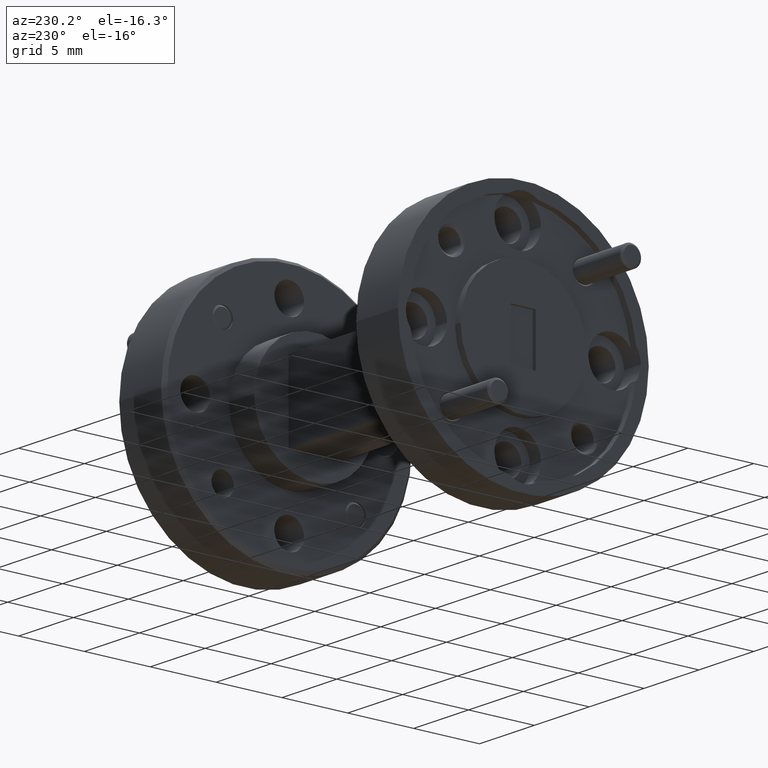
[diagram: clean part render]
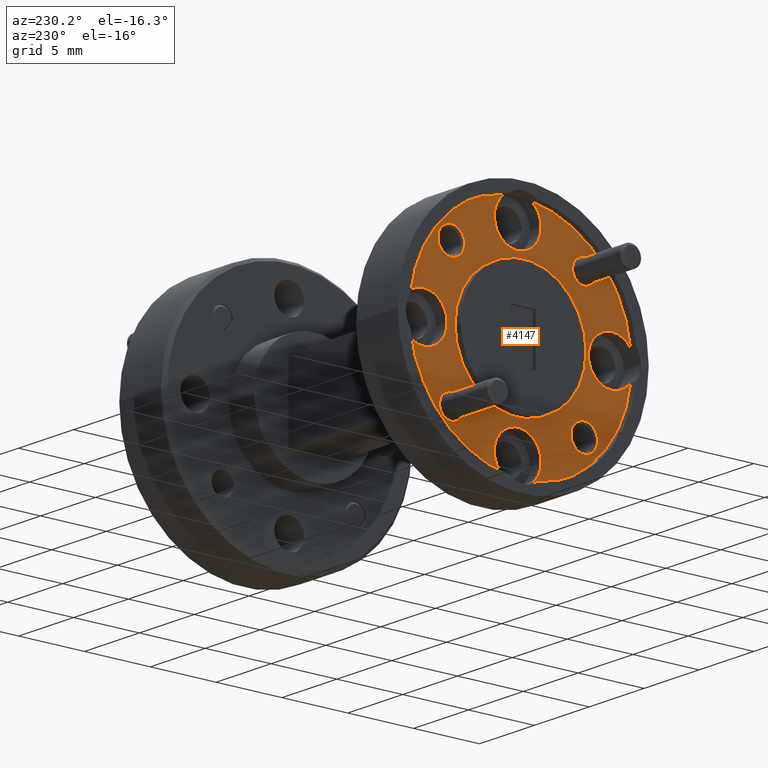
[diagram: same view with one face highlighted and labeled with its STEP entity id]
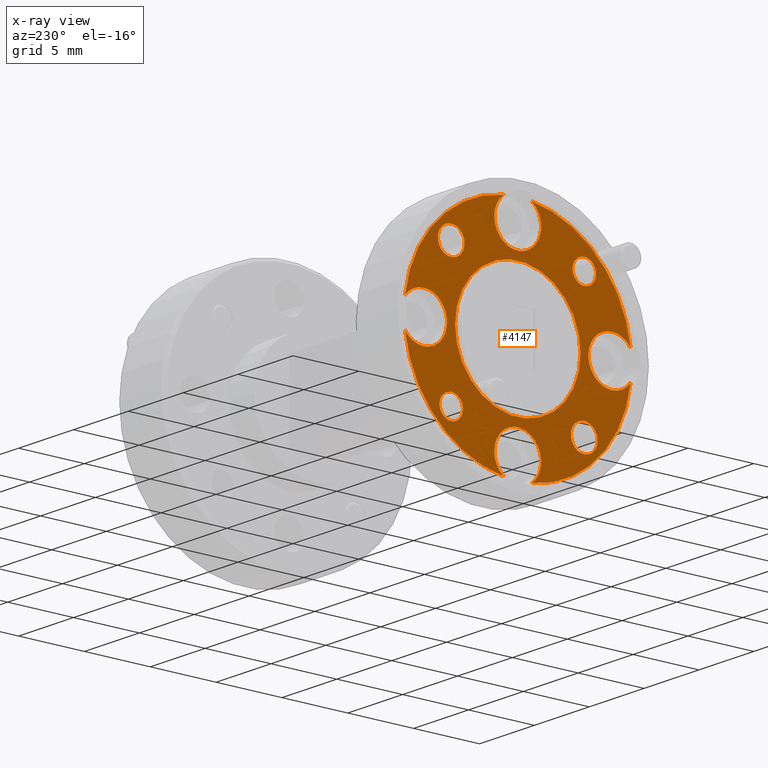
[diagram: x-ray of the same camera — body ghosted, the highlighted face saturated]
A machine part, auxiliary view. The second image highlights one B-rep face of the part: STEP entity #4147.
The next image is the same camera in x-ray: the body ghosted, the highlighted face saturated — about 0% of this face is hidden behind the body in this view.
In plain terms, the highlighted planar face has unit normal (-1, -0, 0).
Its self-contained STEP definition (entity closure, byte-faithful):
#21 = CARTESIAN_POINT ( 'NONE',  ( 0.02000000000000008715, -0.2112499999999999656, 8.572527594031470416E-18 ) ) ;
#68 = DIRECTION ( 'NONE',  ( -1.255444850029533679E-16, 1.000000000000000000, 0.000000000000000000 ) ) ;
#98 = AXIS2_PLACEMENT_3D ( 'NONE', #6543, #3770, #5397 ) ;
#102 = EDGE_CURVE ( 'NONE', #450, #4546, #6019, .T. ) ;
#113 = CIRCLE ( 'NONE', #4248, 0.03500000000000000333 ) ;
#159 = CARTESIAN_POINT ( 'NONE',  ( 0.02000000000000008715, 0.04176564826505178157, 0.3374249999999996974 ) ) ;
#186 = CARTESIAN_POINT ( 'NONE',  ( 0.02000000000000009409, -0.3374249999999996974, -0.04176564826505172606 ) ) ;
#214 = CARTESIAN_POINT ( 'NONE',  ( 0.02000000000000005940, 0.1988737822087169593, -0.1988737822087158769 ) ) ;
#240 = CARTESIAN_POINT ( 'NONE',  ( 0.02000000000000005940, -0.1988737822087169038, 0.2338737822087160745 ) ) ;
#275 = VERTEX_POINT ( 'NONE', #3543 ) ;
#278 = AXIS2_PLACEMENT_3D ( 'NONE', #2284, #509, #2706 ) ;
#435 = DIRECTION ( 'NONE',  ( 0.000000000000000000, 0.000000000000000000, 1.000000000000000000 ) ) ;
#447 = CIRCLE ( 'NONE', #4698, 0.1874999999999997780 ) ;
#450 = VERTEX_POINT ( 'NONE', #4671 ) ;
#474 = CARTESIAN_POINT ( 'NONE',  ( 0.02000000000000009409, -0.04176564826505189953, -0.3374249999999996974 ) ) ;
#509 = DIRECTION ( 'NONE',  ( -1.000000000000000000, -0.000000000000000000, -0.000000000000000000 ) ) ;
#522 = ORIENTED_EDGE ( 'NONE', *, *, #7100, .F. ) ;
#547 = DIRECTION ( 'NONE',  ( 1.219574997171546819E-16, -1.000000000000000000, 0.000000000000000000 ) ) ;
#579 = VERTEX_POINT ( 'NONE', #5982 ) ;
#765 = EDGE_CURVE ( 'NONE', #275, #5403, #447, .T. ) ;
#776 = CARTESIAN_POINT ( 'NONE',  ( 0.02000000000000009062, 1.873714947756690740E-18, 0.000000000000000000 ) ) ;
#777 = AXIS2_PLACEMENT_3D ( 'NONE', #7037, #1441, #4860 ) ;
#804 = CIRCLE ( 'NONE', #918, 0.03999999999999998002 ) ;
#910 = CARTESIAN_POINT ( 'NONE',  ( 0.02000000000000005940, -0.1988737822087169038, -0.2388737822087160512 ) ) ;
#918 = AXIS2_PLACEMENT_3D ( 'NONE', #1416, #2080, #7083 ) ;
#1067 = AXIS2_PLACEMENT_3D ( 'NONE', #5173, #2925, #2350 ) ;
#1078 = EDGE_CURVE ( 'NONE', #579, #6221, #6584, .T. ) ;
#1088 = DIRECTION ( 'NONE',  ( -1.000000000000000000, -1.224646799147353454E-16, 0.000000000000000000 ) ) ;
#1107 = CIRCLE ( 'NONE', #2522, 0.07000000000000002054 ) ;
#1124 = ORIENTED_EDGE ( 'NONE', *, *, #1078, .F. ) ;
#1288 = EDGE_CURVE ( 'NONE', #7204, #4418, #1107, .T. ) ;
#1320 = EDGE_CURVE ( 'NONE', #1717, #3825, #5735, .T. ) ;
#1337 = VERTEX_POINT ( 'NONE', #5658 ) ;
#1359 = ORIENTED_EDGE ( 'NONE', *, *, #5533, .T. ) ;
#1363 = EDGE_CURVE ( 'NONE', #4546, #450, #3724, .T. ) ;
#1394 = AXIS2_PLACEMENT_3D ( 'NONE', #1458, #6034, #3169 ) ;
#1399 = EDGE_CURVE ( 'NONE', #6026, #4664, #2653, .T. ) ;
#1411 = FACE_OUTER_BOUND ( 'NONE', #6104, .T. ) ;
#1416 = CARTESIAN_POINT ( 'NONE',  ( 0.02000000000000005940, 0.1988737822087169593, 0.1988737822087158769 ) ) ;
#1441 = DIRECTION ( 'NONE',  ( -1.000000000000000000, -1.224646799147353454E-16, 0.000000000000000000 ) ) ;
#1458 = CARTESIAN_POINT ( 'NONE',  ( 0.02000000000000009409, -0.2812499999999999445, 0.000000000000000000 ) ) ;
#1466 = CARTESIAN_POINT ( 'NONE',  ( 0.02000000000000002470, 0.2812500000000000555, 0.000000000000000000 ) ) ;
#1486 = EDGE_CURVE ( 'NONE', #4697, #6462, #6564, .T. ) ;
#1489 = DIRECTION ( 'NONE',  ( 1.000000000000000000, 1.224646799147353454E-16, -0.000000000000000000 ) ) ;
#1499 = DIRECTION ( 'NONE',  ( 1.000000000000000000, 1.224646799147353454E-16, -0.000000000000000000 ) ) ;
#1531 = CARTESIAN_POINT ( 'NONE',  ( 0.02000000000000005940, 0.1988737822087169593, 0.1588737822087158968 ) ) ;
#1552 = EDGE_CURVE ( 'NONE', #6462, #4697, #804, .T. ) ;
#1586 = ORIENTED_EDGE ( 'NONE', *, *, #5336, .F. ) ;
#1599 = EDGE_CURVE ( 'NONE', #4912, #1717, #5430, .T. ) ;
#1605 = EDGE_CURVE ( 'NONE', #4278, #579, #6262, .T. ) ;
#1620 = EDGE_CURVE ( 'NONE', #5256, #2684, #5187, .T. ) ;
#1717 = VERTEX_POINT ( 'NONE', #159 ) ;
#1729 = CARTESIAN_POINT ( 'NONE',  ( 0.02000000000000005940, 1.657701336677252579E-17, -0.2812500000000000000 ) ) ;
#1732 = CARTESIAN_POINT ( 'NONE',  ( 0.02000000000000005940, -0.1988737822087169038, -0.1988737822087160712 ) ) ;
#1753 = CARTESIAN_POINT ( 'NONE',  ( 0.02000000000000006981, -0.06999999999999993727, 0.2812500000000000000 ) ) ;
#1766 = CARTESIAN_POINT ( 'NONE',  ( 0.02000000000000005940, 0.1988737822087169593, -0.2338737822087158802 ) ) ;
#1961 = DIRECTION ( 'NONE',  ( -1.138269997360110907E-16, 1.000000000000000000, 0.000000000000000000 ) ) ;
#1989 = CARTESIAN_POINT ( 'NONE',  ( 0.02000000000000013226, -0.3374249999999996974, 0.04176564826505173300 ) ) ;
#1994 = CARTESIAN_POINT ( 'NONE',  ( 0.02000000000000001429, 0.3374249999999995864, 0.04176564826505222566 ) ) ;
#1999 = DIRECTION ( 'NONE',  ( -1.255444850029533679E-16, 1.000000000000000000, 0.000000000000000000 ) ) ;
#2033 = EDGE_CURVE ( 'NONE', #6221, #5256, #6226, .T. ) ;
#2080 = DIRECTION ( 'NONE',  ( -1.000000000000000000, -0.000000000000000000, -0.000000000000000000 ) ) ;
#2125 = AXIS2_PLACEMENT_3D ( 'NONE', #4608, #6330, #4094 ) ;
#2128 = AXIS2_PLACEMENT_3D ( 'NONE', #1729, #4611, #3432 ) ;
#2230 = AXIS2_PLACEMENT_3D ( 'NONE', #3134, #1499, #3658 ) ;
#2246 = DIRECTION ( 'NONE',  ( 1.219574997171545833E-16, -1.000000000000000000, 0.000000000000000000 ) ) ;
#2284 = CARTESIAN_POINT ( 'NONE',  ( 0.02000000000000005940, -0.1988737822087169038, 0.1988737822087160712 ) ) ;
#2319 = DIRECTION ( 'NONE',  ( 1.000000000000000000, 1.224646799147353454E-16, -0.000000000000000000 ) ) ;
#2350 = DIRECTION ( 'NONE',  ( 1.219574997171546819E-16, -1.000000000000000000, 0.000000000000000000 ) ) ;
#2361 = DIRECTION ( 'NONE',  ( 1.000000000000000000, 1.224646799147353454E-16, -0.000000000000000000 ) ) ;
#2465 = DIRECTION ( 'NONE',  ( 0.000000000000000000, 0.000000000000000000, 1.000000000000000000 ) ) ;
#2522 = AXIS2_PLACEMENT_3D ( 'NONE', #4428, #1088, #2246 ) ;
#2624 = CARTESIAN_POINT ( 'NONE',  ( 0.02000000000000005246, 0.04176564826505173994, -0.3374249999999996974 ) ) ;
#2638 = AXIS2_PLACEMENT_3D ( 'NONE', #3680, #1489, #1961 ) ;
#2653 = CIRCLE ( 'NONE', #4419, 0.03999999999999998002 ) ;
#2668 = CARTESIAN_POINT ( 'NONE',  ( 0.02000000000000005940, 0.1988737822087169593, -0.1638737822087158735 ) ) ;
#2684 = VERTEX_POINT ( 'NONE', #186 ) ;
#2688 = ORIENTED_EDGE ( 'NONE', *, *, #1620, .F. ) ;
#2706 = DIRECTION ( 'NONE',  ( 0.000000000000000000, 0.000000000000000000, 1.000000000000000000 ) ) ;
#2724 = ORIENTED_EDGE ( 'NONE', *, *, #4647, .F. ) ;
#2852 = CARTESIAN_POINT ( 'NONE',  ( 0.02000000000000009062, 1.873714947756690740E-18, 0.000000000000000000 ) ) ;
#2925 = DIRECTION ( 'NONE',  ( -1.000000000000000000, -1.224646799147353454E-16, 0.000000000000000000 ) ) ;
#2939 = CARTESIAN_POINT ( 'NONE',  ( 0.02000000000000002123, 1.873714947756682266E-18, 0.000000000000000000 ) ) ;
#2958 = AXIS2_PLACEMENT_3D ( 'NONE', #3534, #5101, #4640 ) ;
#2979 = DIRECTION ( 'NONE',  ( -1.000000000000000000, -0.000000000000000000, -0.000000000000000000 ) ) ;
#3063 = ORIENTED_EDGE ( 'NONE', *, *, #1288, .F. ) ;
#3086 = CIRCLE ( 'NONE', #1067, 0.06999999999999995115 ) ;
#3088 = DIRECTION ( 'NONE',  ( 1.224646799147353454E-16, -1.000000000000000000, 0.000000000000000000 ) ) ;
#3114 = ORIENTED_EDGE ( 'NONE', *, *, #102, .F. ) ;
#3134 = CARTESIAN_POINT ( 'NONE',  ( 0.02000000000000009062, 1.873714947756690740E-18, 0.000000000000000000 ) ) ;
#3142 = DIRECTION ( 'NONE',  ( -1.000000000000000000, -1.224646799147353454E-16, 0.000000000000000000 ) ) ;
#3169 = DIRECTION ( 'NONE',  ( 1.219574997171546080E-16, -1.000000000000000000, 0.000000000000000000 ) ) ;
#3176 = CARTESIAN_POINT ( 'NONE',  ( 0.02000000000000005246, 0.06999999999999996503, 0.2812500000000000000 ) ) ;
#3201 = FACE_BOUND ( 'NONE', #6696, .T. ) ;
#3239 = ORIENTED_EDGE ( 'NONE', *, *, #1320, .F. ) ;
#3330 = CIRCLE ( 'NONE', #2128, 0.07000000000000002054 ) ;
#3357 = ORIENTED_EDGE ( 'NONE', *, *, #1363, .F. ) ;
#3432 = DIRECTION ( 'NONE',  ( 1.219574997171545833E-16, -1.000000000000000000, 0.000000000000000000 ) ) ;
#3441 = CARTESIAN_POINT ( 'NONE',  ( 0.02000000000000005940, -0.1988737822087169038, 0.1988737822087160712 ) ) ;
#3534 = CARTESIAN_POINT ( 'NONE',  ( 0.02000000000000005940, 1.657701336677252579E-17, -0.2812500000000000000 ) ) ;
#3543 = CARTESIAN_POINT ( 'NONE',  ( 0.02000000000000004205, -0.1874999999999997780, 2.296212748401284644E-17 ) ) ;
#3658 = DIRECTION ( 'NONE',  ( -1.255444850029533679E-16, 1.000000000000000000, 0.000000000000000000 ) ) ;
#3680 = CARTESIAN_POINT ( 'NONE',  ( 0.02000000000000002123, 1.873714947756682266E-18, 0.000000000000000000 ) ) ;
#3724 = CIRCLE ( 'NONE', #278, 0.03500000000000000333 ) ;
#3770 = DIRECTION ( 'NONE',  ( -1.000000000000000000, -1.224646799147353454E-16, 0.000000000000000000 ) ) ;
#3791 = ORIENTED_EDGE ( 'NONE', *, *, #2033, .F. ) ;
#3795 = EDGE_CURVE ( 'NONE', #4506, #4912, #5778, .T. ) ;
#3825 = VERTEX_POINT ( 'NONE', #3176 ) ;
#3840 = ORIENTED_EDGE ( 'NONE', *, *, #1599, .F. ) ;
#3853 = VERTEX_POINT ( 'NONE', #474 ) ;
#3934 = AXIS2_PLACEMENT_3D ( 'NONE', #214, #4116, #2465 ) ;
#3975 = AXIS2_PLACEMENT_3D ( 'NONE', #776, #2361, #68 ) ;
#3990 = CARTESIAN_POINT ( 'NONE',  ( 0.02000000000000005940, 1.657701336677252579E-17, 0.2812500000000000000 ) ) ;
#3995 = EDGE_CURVE ( 'NONE', #5446, #7204, #3330, .T. ) ;
#4094 = DIRECTION ( 'NONE',  ( 1.219574997171546080E-16, -1.000000000000000000, 0.000000000000000000 ) ) ;
#4116 = DIRECTION ( 'NONE',  ( -1.000000000000000000, -0.000000000000000000, -0.000000000000000000 ) ) ;
#4147 = ADVANCED_FACE ( 'NONE', ( #6465, #4263, #3201, #5352, #1411, #6540 ), #6429, .T. ) ;
#4155 = CIRCLE ( 'NONE', #4508, 0.3399999999999997469 ) ;
#4216 = EDGE_CURVE ( 'NONE', #4664, #6026, #4262, .T. ) ;
#4243 = ORIENTED_EDGE ( 'NONE', *, *, #6085, .F. ) ;
#4248 = AXIS2_PLACEMENT_3D ( 'NONE', #5775, #4653, #7022 ) ;
#4262 = CIRCLE ( 'NONE', #4386, 0.03999999999999998002 ) ;
#4263 = FACE_BOUND ( 'NONE', #6438, .T. ) ;
#4278 = VERTEX_POINT ( 'NONE', #1753 ) ;
#4305 = EDGE_LOOP ( 'NONE', ( #7010, #4580 ) ) ;
#4386 = AXIS2_PLACEMENT_3D ( 'NONE', #5057, #5569, #6618 ) ;
#4418 = VERTEX_POINT ( 'NONE', #2624 ) ;
#4419 = AXIS2_PLACEMENT_3D ( 'NONE', #1732, #6258, #435 ) ;
#4428 = CARTESIAN_POINT ( 'NONE',  ( 0.02000000000000005940, 1.657701336677252579E-17, -0.2812500000000000000 ) ) ;
#4489 = CIRCLE ( 'NONE', #2958, 0.07000000000000002054 ) ;
#4506 = VERTEX_POINT ( 'NONE', #6795 ) ;
#4508 = AXIS2_PLACEMENT_3D ( 'NONE', #6587, #5319, #1999 ) ;
#4546 = VERTEX_POINT ( 'NONE', #240 ) ;
#4571 = DIRECTION ( 'NONE',  ( -1.255444850029533679E-16, 1.000000000000000000, 0.000000000000000000 ) ) ;
#4580 = ORIENTED_EDGE ( 'NONE', *, *, #1552, .F. ) ;
#4608 = CARTESIAN_POINT ( 'NONE',  ( 0.02000000000000002470, 0.2812500000000000555, 0.000000000000000000 ) ) ;
#4611 = DIRECTION ( 'NONE',  ( -1.000000000000000000, -1.224646799147353454E-16, 0.000000000000000000 ) ) ;
#4614 = DIRECTION ( 'NONE',  ( 0.000000000000000000, 0.000000000000000000, 1.000000000000000000 ) ) ;
#4640 = DIRECTION ( 'NONE',  ( 1.219574997171545833E-16, -1.000000000000000000, 0.000000000000000000 ) ) ;
#4647 = EDGE_CURVE ( 'NONE', #5092, #6778, #113, .T. ) ;
#4653 = DIRECTION ( 'NONE',  ( -1.000000000000000000, -0.000000000000000000, -0.000000000000000000 ) ) ;
#4664 = VERTEX_POINT ( 'NONE', #910 ) ;
#4666 = ORIENTED_EDGE ( 'NONE', *, *, #1605, .F. ) ;
#4671 = CARTESIAN_POINT ( 'NONE',  ( 0.02000000000000005940, -0.1988737822087169038, 0.1638737822087160678 ) ) ;
#4688 = DIRECTION ( 'NONE',  ( 0.000000000000000000, 0.000000000000000000, 1.000000000000000000 ) ) ;
#4697 = VERTEX_POINT ( 'NONE', #5917 ) ;
#4698 = AXIS2_PLACEMENT_3D ( 'NONE', #2939, #6350, #5332 ) ;
#4716 = CARTESIAN_POINT ( 'NONE',  ( 0.02000000000000000042, 0.1874999999999997780, 0.000000000000000000 ) ) ;
#4758 = CARTESIAN_POINT ( 'NONE',  ( 0.02000000000000003511, 0.1874999999999997780, 0.000000000000000000 ) ) ;
#4777 = EDGE_LOOP ( 'NONE', ( #3357, #3114 ) ) ;
#4856 = EDGE_CURVE ( 'NONE', #3825, #4278, #3086, .T. ) ;
#4860 = DIRECTION ( 'NONE',  ( 1.219574997171546080E-16, -1.000000000000000000, 0.000000000000000000 ) ) ;
#4866 = AXIS2_PLACEMENT_3D ( 'NONE', #4758, #6031, #3088 ) ;
#4912 = VERTEX_POINT ( 'NONE', #1994 ) ;
#4970 = ORIENTED_EDGE ( 'NONE', *, *, #3995, .F. ) ;
#5004 = AXIS2_PLACEMENT_3D ( 'NONE', #2852, #2319, #4571 ) ;
#5037 = ORIENTED_EDGE ( 'NONE', *, *, #4216, .F. ) ;
#5057 = CARTESIAN_POINT ( 'NONE',  ( 0.02000000000000005940, -0.1988737822087169038, -0.1988737822087160712 ) ) ;
#5092 = VERTEX_POINT ( 'NONE', #1766 ) ;
#5101 = DIRECTION ( 'NONE',  ( -1.000000000000000000, -1.224646799147353454E-16, 0.000000000000000000 ) ) ;
#5142 = EDGE_CURVE ( 'NONE', #4418, #1337, #4155, .T. ) ;
#5173 = CARTESIAN_POINT ( 'NONE',  ( 0.02000000000000005940, 1.657701336677252579E-17, 0.2812500000000000000 ) ) ;
#5185 = AXIS2_PLACEMENT_3D ( 'NONE', #1466, #3142, #5405 ) ;
#5187 = CIRCLE ( 'NONE', #1394, 0.07000000000000000666 ) ;
#5256 = VERTEX_POINT ( 'NONE', #21 ) ;
#5300 = EDGE_LOOP ( 'NONE', ( #1359, #6689 ) ) ;
#5319 = DIRECTION ( 'NONE',  ( 1.000000000000000000, 1.224646799147353454E-16, -0.000000000000000000 ) ) ;
#5332 = DIRECTION ( 'NONE',  ( -1.138269997360110907E-16, 1.000000000000000000, 0.000000000000000000 ) ) ;
#5336 = EDGE_CURVE ( 'NONE', #3853, #5446, #4489, .T. ) ;
#5352 = FACE_BOUND ( 'NONE', #4305, .T. ) ;
#5397 = DIRECTION ( 'NONE',  ( 1.219574997171546819E-16, -1.000000000000000000, 0.000000000000000000 ) ) ;
#5403 = VERTEX_POINT ( 'NONE', #4716 ) ;
#5405 = DIRECTION ( 'NONE',  ( 1.219574997171546080E-16, -1.000000000000000000, 0.000000000000000000 ) ) ;
#5430 = CIRCLE ( 'NONE', #2230, 0.3399999999999997469 ) ;
#5446 = VERTEX_POINT ( 'NONE', #6027 ) ;
#5533 = EDGE_CURVE ( 'NONE', #5403, #275, #5837, .T. ) ;
#5569 = DIRECTION ( 'NONE',  ( -1.000000000000000000, -0.000000000000000000, -0.000000000000000000 ) ) ;
#5658 = CARTESIAN_POINT ( 'NONE',  ( 0.02000000000000004552, 0.3374249999999996974, -0.04176564826505221872 ) ) ;
#5735 = CIRCLE ( 'NONE', #6693, 0.06999999999999995115 ) ;
#5738 = DIRECTION ( 'NONE',  ( -1.000000000000000000, -0.000000000000000000, -0.000000000000000000 ) ) ;
#5775 = CARTESIAN_POINT ( 'NONE',  ( 0.02000000000000005940, 0.1988737822087169593, -0.1988737822087158769 ) ) ;
#5778 = CIRCLE ( 'NONE', #5185, 0.07000000000000000666 ) ;
#5800 = CARTESIAN_POINT ( 'NONE',  ( 0.02000000000000005940, 0.1988737822087169593, 0.1988737822087158769 ) ) ;
#5837 = CIRCLE ( 'NONE', #2638, 0.1874999999999997780 ) ;
#5917 = CARTESIAN_POINT ( 'NONE',  ( 0.02000000000000005940, 0.1988737822087169593, 0.2388737822087158569 ) ) ;
#5918 = ORIENTED_EDGE ( 'NONE', *, *, #6687, .F. ) ;
#5974 = AXIS2_PLACEMENT_3D ( 'NONE', #5800, #2979, #4614 ) ;
#5982 = CARTESIAN_POINT ( 'NONE',  ( 0.02000000000000005940, -0.04176564826505170525, 0.3374249999999996974 ) ) ;
#6019 = CIRCLE ( 'NONE', #7325, 0.03500000000000000333 ) ;
#6026 = VERTEX_POINT ( 'NONE', #6776 ) ;
#6027 = CARTESIAN_POINT ( 'NONE',  ( 0.02000000000000006981, -0.07000000000000000666, -0.2812500000000000000 ) ) ;
#6031 = DIRECTION ( 'NONE',  ( -1.000000000000000000, -1.224646799147353454E-16, 0.000000000000000000 ) ) ;
#6034 = DIRECTION ( 'NONE',  ( -1.000000000000000000, -1.224646799147353454E-16, 0.000000000000000000 ) ) ;
#6085 = EDGE_CURVE ( 'NONE', #1337, #4506, #6890, .T. ) ;
#6096 = ORIENTED_EDGE ( 'NONE', *, *, #5142, .F. ) ;
#6104 = EDGE_LOOP ( 'NONE', ( #4243, #6096, #3063, #4970, #1586, #522, #2688, #3791, #1124, #4666, #7318, #3239, #3840, #6747 ) ) ;
#6148 = DIRECTION ( 'NONE',  ( -1.000000000000000000, -1.224646799147353454E-16, 0.000000000000000000 ) ) ;
#6221 = VERTEX_POINT ( 'NONE', #1989 ) ;
#6226 = CIRCLE ( 'NONE', #777, 0.07000000000000000666 ) ;
#6258 = DIRECTION ( 'NONE',  ( -1.000000000000000000, -0.000000000000000000, -0.000000000000000000 ) ) ;
#6262 = CIRCLE ( 'NONE', #98, 0.06999999999999995115 ) ;
#6330 = DIRECTION ( 'NONE',  ( -1.000000000000000000, -1.224646799147353454E-16, 0.000000000000000000 ) ) ;
#6350 = DIRECTION ( 'NONE',  ( 1.000000000000000000, 1.224646799147353454E-16, -0.000000000000000000 ) ) ;
#6429 = PLANE ( 'NONE',  #4866 ) ;
#6438 = EDGE_LOOP ( 'NONE', ( #5918, #2724 ) ) ;
#6462 = VERTEX_POINT ( 'NONE', #1531 ) ;
#6465 = FACE_BOUND ( 'NONE', #4777, .T. ) ;
#6529 = CIRCLE ( 'NONE', #3934, 0.03500000000000000333 ) ;
#6540 = FACE_BOUND ( 'NONE', #5300, .T. ) ;
#6543 = CARTESIAN_POINT ( 'NONE',  ( 0.02000000000000005940, 1.657701336677252579E-17, 0.2812500000000000000 ) ) ;
#6564 = CIRCLE ( 'NONE', #5974, 0.03999999999999998002 ) ;
#6584 = CIRCLE ( 'NONE', #3975, 0.3399999999999997469 ) ;
#6587 = CARTESIAN_POINT ( 'NONE',  ( 0.02000000000000009062, 1.873714947756690740E-18, 0.000000000000000000 ) ) ;
#6618 = DIRECTION ( 'NONE',  ( 0.000000000000000000, 0.000000000000000000, 1.000000000000000000 ) ) ;
#6669 = CIRCLE ( 'NONE', #5004, 0.3399999999999997469 ) ;
#6687 = EDGE_CURVE ( 'NONE', #6778, #5092, #6529, .T. ) ;
#6689 = ORIENTED_EDGE ( 'NONE', *, *, #765, .T. ) ;
#6693 = AXIS2_PLACEMENT_3D ( 'NONE', #3990, #6148, #547 ) ;
#6696 = EDGE_LOOP ( 'NONE', ( #7159, #5037 ) ) ;
#6747 = ORIENTED_EDGE ( 'NONE', *, *, #3795, .F. ) ;
#6776 = CARTESIAN_POINT ( 'NONE',  ( 0.02000000000000005940, -0.1988737822087169038, -0.1588737822087160911 ) ) ;
#6778 = VERTEX_POINT ( 'NONE', #2668 ) ;
#6795 = CARTESIAN_POINT ( 'NONE',  ( 0.02000000000000003511, 0.2112500000000000211, 0.000000000000000000 ) ) ;
#6890 = CIRCLE ( 'NONE', #2125, 0.07000000000000000666 ) ;
#7010 = ORIENTED_EDGE ( 'NONE', *, *, #1486, .F. ) ;
#7022 = DIRECTION ( 'NONE',  ( 0.000000000000000000, 0.000000000000000000, 1.000000000000000000 ) ) ;
#7037 = CARTESIAN_POINT ( 'NONE',  ( 0.02000000000000009409, -0.2812499999999999445, 0.000000000000000000 ) ) ;
#7083 = DIRECTION ( 'NONE',  ( 0.000000000000000000, 0.000000000000000000, 1.000000000000000000 ) ) ;
#7100 = EDGE_CURVE ( 'NONE', #2684, #3853, #6669, .T. ) ;
#7159 = ORIENTED_EDGE ( 'NONE', *, *, #1399, .F. ) ;
#7204 = VERTEX_POINT ( 'NONE', #7333 ) ;
#7318 = ORIENTED_EDGE ( 'NONE', *, *, #4856, .F. ) ;
#7325 = AXIS2_PLACEMENT_3D ( 'NONE', #3441, #5738, #4688 ) ;
#7333 = CARTESIAN_POINT ( 'NONE',  ( 0.02000000000000005246, 0.07000000000000003442, -0.2812500000000000000 ) ) ;